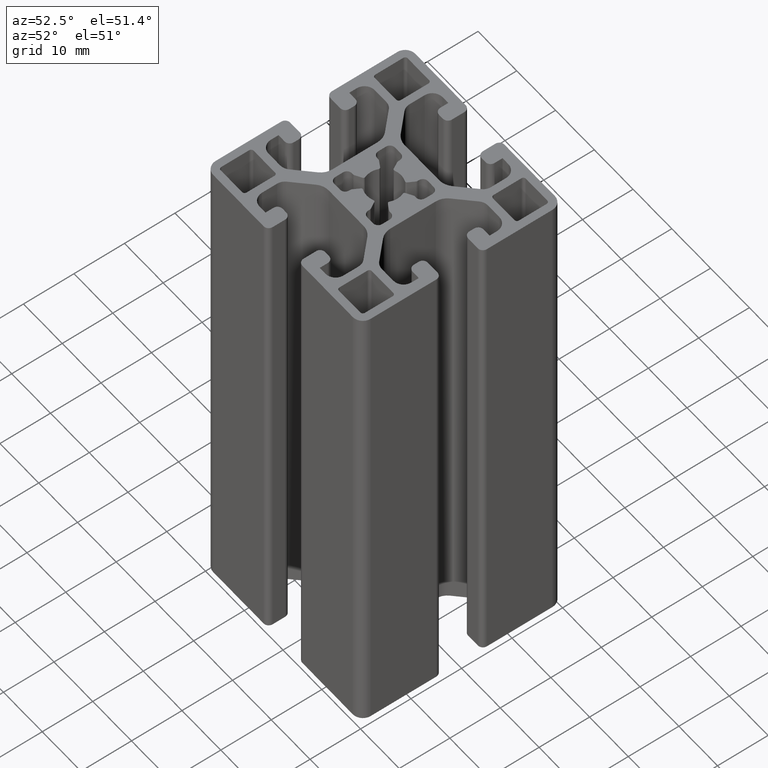
[diagram: clean part render]
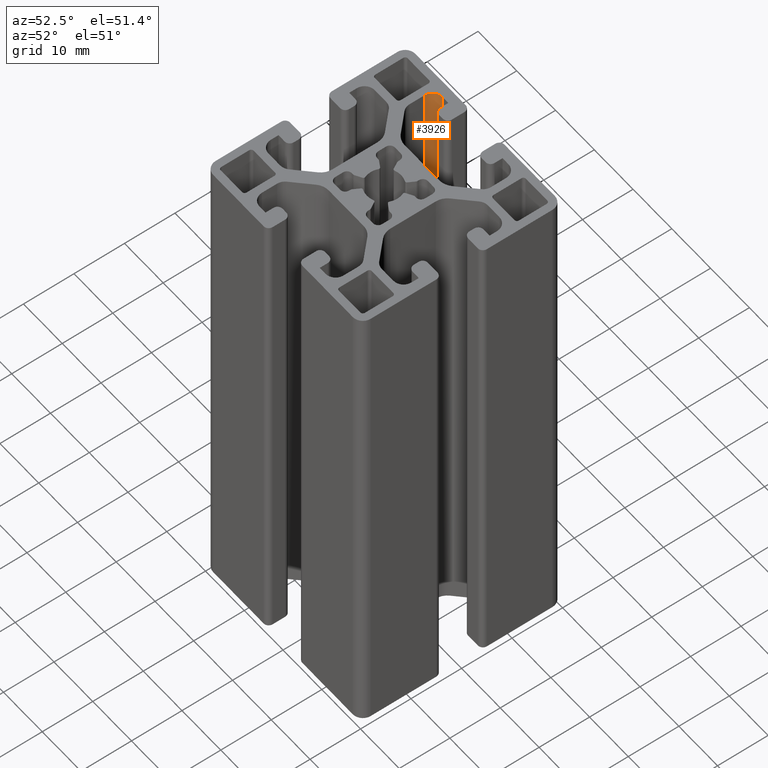
[diagram: same view with one face highlighted and labeled with its STEP entity id]
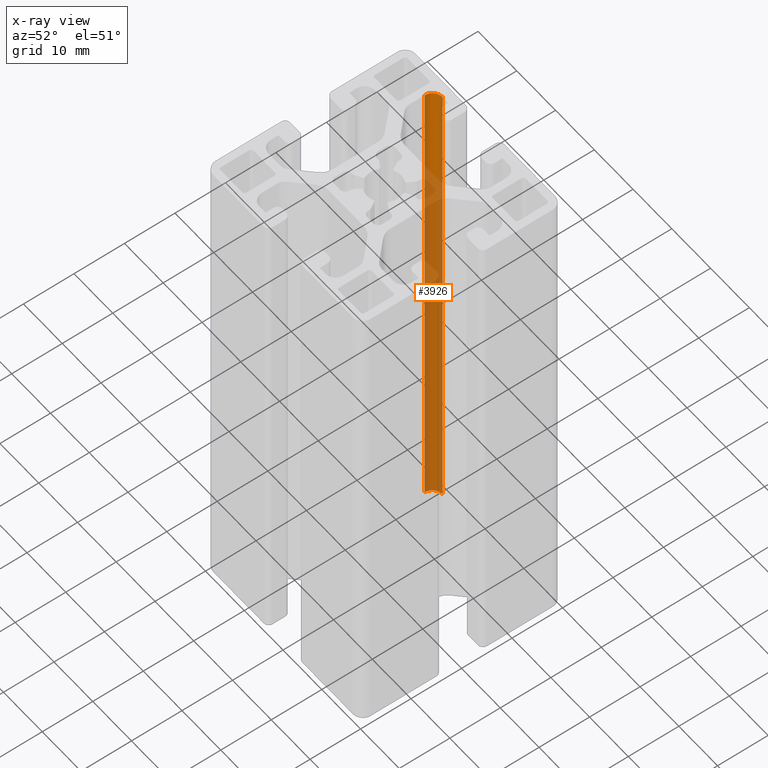
[diagram: x-ray of the same camera — body ghosted, the highlighted face saturated]
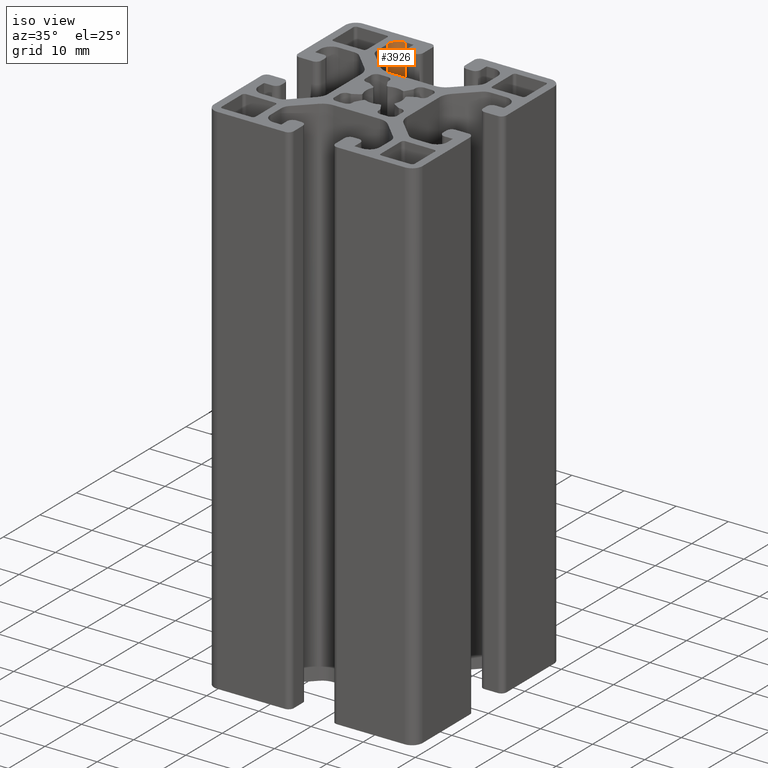
[diagram: same view with one face highlighted and labeled with its STEP entity id]
A machine part, auxiliary view. The second image highlights one B-rep face of the part: STEP entity #3926.
The next image is the same camera in x-ray: the body ghosted, the highlighted face saturated — about 80% of this face is hidden behind the body in this view.
A second angle (iso view) of the same face is appended — the face is thin or edge-on in the first view.
In plain terms, the highlighted cylindrical surface (edge-blend (fillet) strip) has radius 2 mm, axis along (0, 0, 1).
Its self-contained STEP definition (entity closure, byte-faithful):
#212=FACE_OUTER_BOUND('',#414,.T.);
#414=EDGE_LOOP('',(#2881,#2882,#2883,#2884));
#703=LINE('',#6165,#1103);
#705=LINE('',#6171,#1105);
#1103=VECTOR('',#4965,100.);
#1105=VECTOR('',#4971,100.);
#1433=CIRCLE('',#4223,2.);
#1434=CIRCLE('',#4224,2.);
#1711=VERTEX_POINT('',#6162);
#1712=VERTEX_POINT('',#6164);
#1713=VERTEX_POINT('',#6168);
#1714=VERTEX_POINT('',#6170);
#2195=EDGE_CURVE('',#1712,#1711,#703,.T.);
#2197=EDGE_CURVE('',#1713,#1711,#1433,.T.);
#2198=EDGE_CURVE('',#1714,#1713,#705,.T.);
#2199=EDGE_CURVE('',#1712,#1714,#1434,.T.);
#2881=ORIENTED_EDGE('',*,*,#2197,.F.);
#2882=ORIENTED_EDGE('',*,*,#2198,.F.);
#2883=ORIENTED_EDGE('',*,*,#2199,.F.);
#2884=ORIENTED_EDGE('',*,*,#2195,.T.);
#3787=CYLINDRICAL_SURFACE('',#4222,2.);
#3926=ADVANCED_FACE('',(#212),#3787,.F.);
#4222=AXIS2_PLACEMENT_3D('',#6167,#4967,#4968);
#4223=AXIS2_PLACEMENT_3D('',#6169,#4969,#4970);
#4224=AXIS2_PLACEMENT_3D('',#6172,#4972,#4973);
#4965=DIRECTION('',(0.,0.,1.));
#4967=DIRECTION('center_axis',(0.,0.,1.));
#4968=DIRECTION('ref_axis',(0.,1.,0.));
#4969=DIRECTION('center_axis',(0.,0.,-1.));
#4970=DIRECTION('ref_axis',(0.,1.,0.));
#4971=DIRECTION('',(0.,0.,1.));
#4972=DIRECTION('center_axis',(0.,0.,1.));
#4973=DIRECTION('ref_axis',(0.,1.,0.));
#6162=CARTESIAN_POINT('',(-8.49999299999999,18.099994,100.));
#6164=CARTESIAN_POINT('',(-8.49999299999999,18.099994,0.));
#6165=CARTESIAN_POINT('',(-8.49999299999999,18.099994,0.));
#6167=CARTESIAN_POINT('Origin',(-8.49999299999999,16.099994,0.));
#6168=CARTESIAN_POINT('',(-10.499993,16.099994,100.));
#6169=CARTESIAN_POINT('Origin',(-8.49999299999999,16.099994,100.));
#6170=CARTESIAN_POINT('',(-10.499993,16.099994,0.));
#6171=CARTESIAN_POINT('',(-10.499993,16.099994,0.));
#6172=CARTESIAN_POINT('Origin',(-8.49999299999999,16.099994,0.));